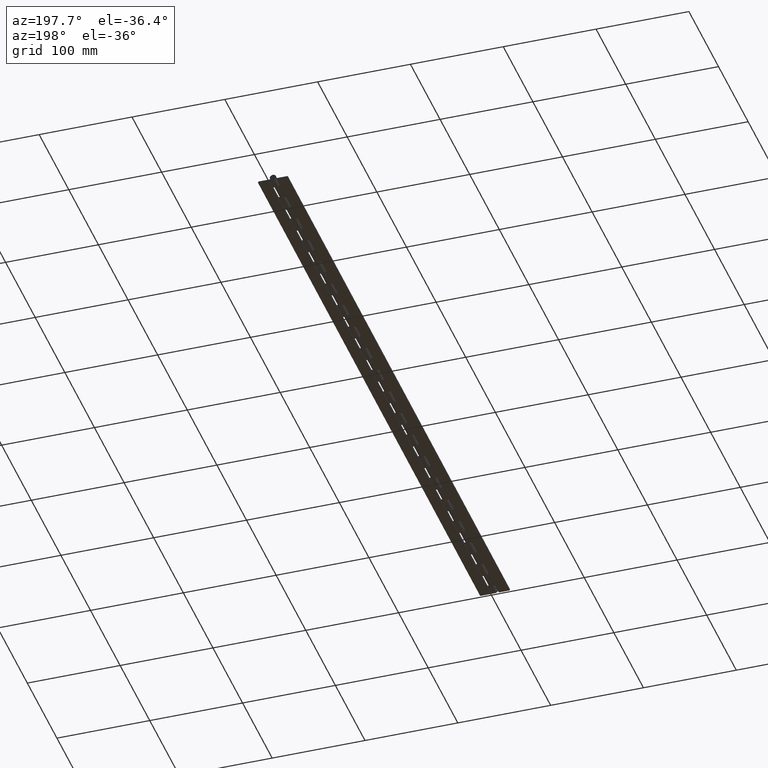
[diagram: clean part render]
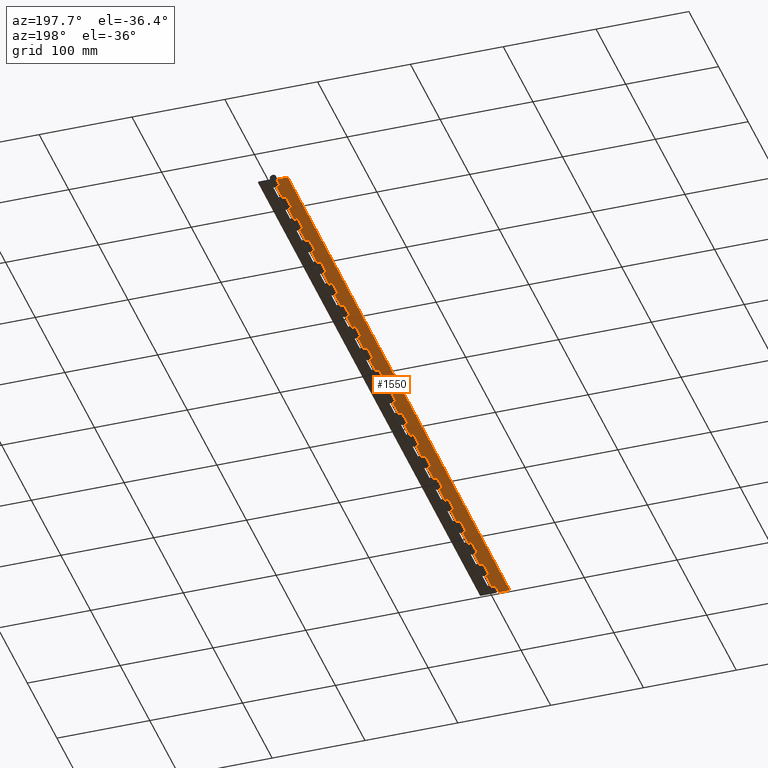
[diagram: same view with one face highlighted and labeled with its STEP entity id]
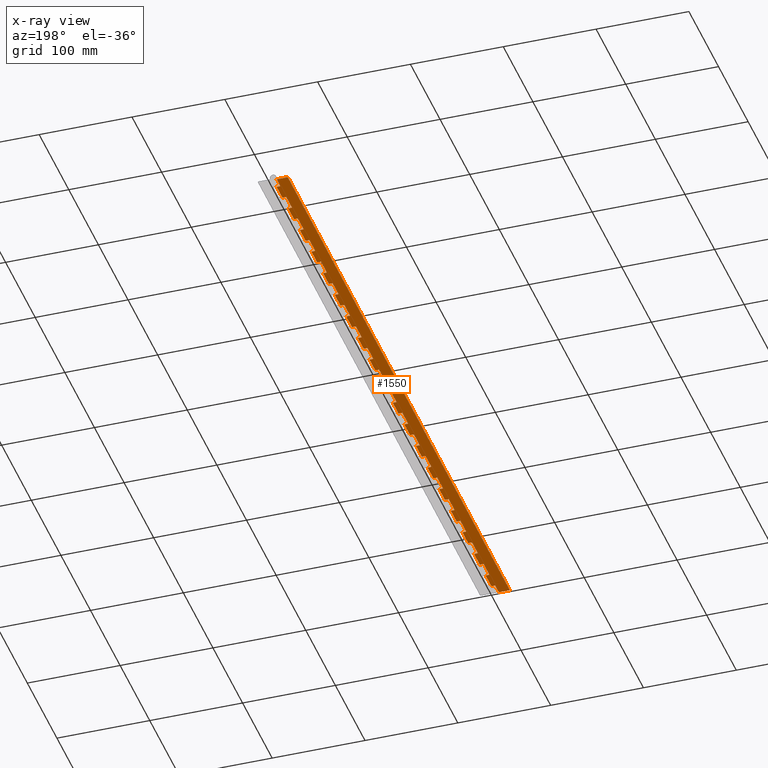
[diagram: x-ray of the same camera — body ghosted, the highlighted face saturated]
A machine part, auxiliary view. The second image highlights one B-rep face of the part: STEP entity #1550.
The next image is the same camera in x-ray: the body ghosted, the highlighted face saturated — about 0% of this face is hidden behind the body in this view.
In plain terms, the highlighted planar face has unit normal (0, 0, 1).
Its self-contained STEP definition (entity closure, byte-faithful):
#1 = CARTESIAN_POINT ( 'NONE',  ( -15.99999982459446300, 78.40000000000002000, -3.350000000000000500 ) ) ;
#40 = EDGE_CURVE ( 'NONE', #3232, #2082, #7272, .T. ) ;
#50 = ORIENTED_EDGE ( 'NONE', *, *, #6202, .T. ) ;
#52 = CARTESIAN_POINT ( 'NONE',  ( 0.0000000000000000000, 509.6000000000000800, -3.350000000000000500 ) ) ;
#53 = CARTESIAN_POINT ( 'NONE',  ( -3.999999824594461900, 666.4000000000000900, -3.350000000000000500 ) ) ;
#54 = LINE ( 'NONE', #3114, #4959 ) ;
#77 = ORIENTED_EDGE ( 'NONE', *, *, #7607, .T. ) ;
#111 = VERTEX_POINT ( 'NONE', #2161 ) ;
#118 = LINE ( 'NONE', #7765, #2697 ) ;
#134 = VECTOR ( 'NONE', #6717, 1000.000000000000000 ) ;
#139 = VECTOR ( 'NONE', #2868, 1000.000000000000000 ) ;
#141 = CARTESIAN_POINT ( 'NONE',  ( 0.0000000000000000000, 156.8000000000000100, -3.350000000000000500 ) ) ;
#144 = VERTEX_POINT ( 'NONE', #5946 ) ;
#152 = DIRECTION ( 'NONE',  ( -0.0000000000000000000, -1.000000000000000000, -0.0000000000000000000 ) ) ;
#166 = CARTESIAN_POINT ( 'NONE',  ( 0.0000000000000000000, 725.2000000000000500, -3.350000000000000500 ) ) ;
#194 = VERTEX_POINT ( 'NONE', #6678 ) ;
#209 = VERTEX_POINT ( 'NONE', #7238 ) ;
#249 = EDGE_CURVE ( 'NONE', #3271, #6583, #534, .T. ) ;
#254 = DIRECTION ( 'NONE',  ( -1.000000000000000000, -0.0000000000000000000, 0.0000000000000000000 ) ) ;
#265 = DIRECTION ( 'NONE',  ( 1.327594496921025700E-016, -1.000000000000000000, 0.0000000000000000000 ) ) ;
#275 = DIRECTION ( 'NONE',  ( 1.000000000000000000, 0.0000000000000000000, 0.0000000000000000000 ) ) ;
#281 = CARTESIAN_POINT ( 'NONE',  ( -15.99999982459446300, 156.8000000000000400, -3.350000000000000500 ) ) ;
#289 = AXIS2_PLACEMENT_3D ( 'NONE', #3565, #3220, #6434 ) ;
#297 = EDGE_CURVE ( 'NONE', #3287, #111, #3518, .T. ) ;
#323 = VECTOR ( 'NONE', #4070, 1000.000000000000000 ) ;
#337 = CARTESIAN_POINT ( 'NONE',  ( -3.999999824594461900, 666.4000000000000900, -3.350000000000000500 ) ) ;
#351 = EDGE_CURVE ( 'NONE', #1193, #765, #3112, .T. ) ;
#354 = LINE ( 'NONE', #977, #5247 ) ;
#362 = EDGE_CURVE ( 'NONE', #3859, #3232, #6534, .T. ) ;
#369 = CARTESIAN_POINT ( 'NONE',  ( -3.999999824594459200, 333.2000000000000500, -3.350000000000000500 ) ) ;
#381 = VERTEX_POINT ( 'NONE', #7755 ) ;
#385 = CARTESIAN_POINT ( 'NONE',  ( -3.999999824594461900, 274.4000000000000300, -3.350000000000000500 ) ) ;
#396 = CARTESIAN_POINT ( 'NONE',  ( -3.999999824594459200, 372.4000000000000900, -3.350000000000000500 ) ) ;
#399 = ORIENTED_EDGE ( 'NONE', *, *, #7476, .T. ) ;
#414 = ORIENTED_EDGE ( 'NONE', *, *, #1083, .T. ) ;
#427 = VECTOR ( 'NONE', #6502, 1000.000000000000000 ) ;
#431 = EDGE_CURVE ( 'NONE', #5645, #2429, #813, .T. ) ;
#435 = EDGE_CURVE ( 'NONE', #3449, #194, #624, .T. ) ;
#442 = CARTESIAN_POINT ( 'NONE',  ( 0.0000000000000000000, 725.2000000000000500, -3.350000000000000500 ) ) ;
#482 = EDGE_CURVE ( 'NONE', #209, #1553, #5133, .T. ) ;
#501 = DIRECTION ( 'NONE',  ( 1.000000000000000000, 0.0000000000000000000, 0.0000000000000000000 ) ) ;
#514 = LINE ( 'NONE', #4620, #1801 ) ;
#534 = LINE ( 'NONE', #4718, #7166 ) ;
#539 = VECTOR ( 'NONE', #5368, 1000.000000000000000 ) ;
#552 = VERTEX_POINT ( 'NONE', #4017 ) ;
#569 = DIRECTION ( 'NONE',  ( 1.327594496921025700E-016, -1.000000000000000000, 0.0000000000000000000 ) ) ;
#572 = CARTESIAN_POINT ( 'NONE',  ( -3.999999824594461900, 313.6000000000000200, -3.350000000000000500 ) ) ;
#581 = CARTESIAN_POINT ( 'NONE',  ( -3.999999824594459200, 294.0000000000000600, -3.350000000000000500 ) ) ;
#620 = LINE ( 'NONE', #5864, #427 ) ;
#624 = LINE ( 'NONE', #6903, #7673 ) ;
#630 = LINE ( 'NONE', #5360, #7069 ) ;
#649 = DIRECTION ( 'NONE',  ( -0.0000000000000000000, -1.000000000000000000, -0.0000000000000000000 ) ) ;
#652 = VECTOR ( 'NONE', #3597, 1000.000000000000000 ) ;
#666 = CARTESIAN_POINT ( 'NONE',  ( -3.999999824594461900, 431.2000000000001000, -3.350000000000000500 ) ) ;
#678 = DIRECTION ( 'NONE',  ( -1.000000000000000000, -0.0000000000000000000, 0.0000000000000000000 ) ) ;
#681 = ORIENTED_EDGE ( 'NONE', *, *, #5373, .T. ) ;
#700 = VERTEX_POINT ( 'NONE', #2952 ) ;
#750 = VERTEX_POINT ( 'NONE', #4994 ) ;
#758 = VERTEX_POINT ( 'NONE', #6247 ) ;
#765 = VERTEX_POINT ( 'NONE', #1959 ) ;
#778 = ORIENTED_EDGE ( 'NONE', *, *, #3250, .T. ) ;
#781 = EDGE_CURVE ( 'NONE', #6583, #3859, #4409, .T. ) ;
#798 = EDGE_CURVE ( 'NONE', #7500, #144, #7666, .T. ) ;
#813 = LINE ( 'NONE', #5371, #2322 ) ;
#842 = CARTESIAN_POINT ( 'NONE',  ( 0.0000000000000000000, 725.2000000000000500, -3.350000000000000500 ) ) ;
#848 = EDGE_CURVE ( 'NONE', #1005, #983, #2108, .T. ) ;
#859 = VERTEX_POINT ( 'NONE', #1982 ) ;
#873 = DIRECTION ( 'NONE',  ( 1.327594496921025700E-016, -1.000000000000000000, 0.0000000000000000000 ) ) ;
#874 = EDGE_CURVE ( 'NONE', #2187, #4313, #5314, .T. ) ;
#889 = CARTESIAN_POINT ( 'NONE',  ( -3.999999824594459200, 607.6000000000000200, -3.350000000000000500 ) ) ;
#896 = VECTOR ( 'NONE', #7862, 1000.000000000000000 ) ;
#899 = DIRECTION ( 'NONE',  ( -1.000000000000000000, -0.0000000000000000000, 0.0000000000000000000 ) ) ;
#924 = LINE ( 'NONE', #8277, #5843 ) ;
#977 = CARTESIAN_POINT ( 'NONE',  ( 0.0000000000000000000, 725.2000000000000500, -3.350000000000000500 ) ) ;
#983 = VERTEX_POINT ( 'NONE', #1901 ) ;
#987 = VERTEX_POINT ( 'NONE', #1581 ) ;
#1005 = VERTEX_POINT ( 'NONE', #2065 ) ;
#1020 = CARTESIAN_POINT ( 'NONE',  ( -15.99999982459446300, -12.40000000000000000, -3.350000000000000500 ) ) ;
#1024 = CARTESIAN_POINT ( 'NONE',  ( 0.0000000000000000000, 725.2000000000000500, -3.350000000000000500 ) ) ;
#1031 = ORIENTED_EDGE ( 'NONE', *, *, #7208, .T. ) ;
#1034 = LINE ( 'NONE', #3499, #4234 ) ;
#1081 = VERTEX_POINT ( 'NONE', #3855 ) ;
#1083 = EDGE_CURVE ( 'NONE', #859, #1193, #2000, .T. ) ;
#1094 = LINE ( 'NONE', #7457, #6002 ) ;
#1098 = DIRECTION ( 'NONE',  ( 1.000000000000000000, 0.0000000000000000000, 0.0000000000000000000 ) ) ;
#1109 = EDGE_CURVE ( 'NONE', #6977, #6296, #514, .T. ) ;
#1121 = ORIENTED_EDGE ( 'NONE', *, *, #4886, .T. ) ;
#1137 = VECTOR ( 'NONE', #5971, 1000.000000000000000 ) ;
#1142 = VERTEX_POINT ( 'NONE', #5399 ) ;
#1144 = VECTOR ( 'NONE', #1950, 1000.000000000000000 ) ;
#1162 = CARTESIAN_POINT ( 'NONE',  ( -3.999999824594461900, 509.6000000000000800, -3.350000000000000500 ) ) ;
#1174 = VERTEX_POINT ( 'NONE', #6634 ) ;
#1179 = CARTESIAN_POINT ( 'NONE',  ( -3.999999824594459200, 254.8000000000000400, -3.350000000000000500 ) ) ;
#1193 = VERTEX_POINT ( 'NONE', #6580 ) ;
#1207 = VECTOR ( 'NONE', #4863, 1000.000000000000000 ) ;
#1208 = DIRECTION ( 'NONE',  ( 1.000000000000000000, 0.0000000000000000000, 0.0000000000000000000 ) ) ;
#1217 = EDGE_CURVE ( 'NONE', #5851, #4440, #118, .T. ) ;
#1218 = VECTOR ( 'NONE', #7664, 1000.000000000000000 ) ;
#1235 = EDGE_CURVE ( 'NONE', #700, #987, #5910, .T. ) ;
#1259 = CARTESIAN_POINT ( 'NONE',  ( 0.0000000000000000000, 725.2000000000000500, -3.350000000000000500 ) ) ;
#1291 = VERTEX_POINT ( 'NONE', #7637 ) ;
#1299 = CARTESIAN_POINT ( 'NONE',  ( -15.99999982459446300, 235.2000000000000700, -3.350000000000000500 ) ) ;
#1310 = LINE ( 'NONE', #3716, #7953 ) ;
#1337 = LINE ( 'NONE', #842, #1137 ) ;
#1362 = LINE ( 'NONE', #5907, #8010 ) ;
#1395 = ORIENTED_EDGE ( 'NONE', *, *, #1437, .T. ) ;
#1397 = LINE ( 'NONE', #4131, #8051 ) ;
#1399 = CARTESIAN_POINT ( 'NONE',  ( -3.999999824594463700, 0.0000000000000000000, -3.350000000000000500 ) ) ;
#1411 = ORIENTED_EDGE ( 'NONE', *, *, #6276, .F. ) ;
#1412 = VECTOR ( 'NONE', #6555, 1000.000000000000000 ) ;
#1418 = VECTOR ( 'NONE', #6471, 1000.000000000000000 ) ;
#1425 = DIRECTION ( 'NONE',  ( 1.327594496921025700E-016, -1.000000000000000000, 0.0000000000000000000 ) ) ;
#1437 = EDGE_CURVE ( 'NONE', #5803, #1005, #6422, .T. ) ;
#1448 = CARTESIAN_POINT ( 'NONE',  ( 0.0000000000000000000, 78.40000000000000600, -3.350000000000000500 ) ) ;
#1455 = LINE ( 'NONE', #6113, #6377 ) ;
#1473 = ORIENTED_EDGE ( 'NONE', *, *, #3485, .T. ) ;
#1476 = CARTESIAN_POINT ( 'NONE',  ( -3.999999824594461900, 470.4000000000000900, -3.350000000000000500 ) ) ;
#1490 = LINE ( 'NONE', #166, #8148 ) ;
#1511 = VECTOR ( 'NONE', #7229, 1000.000000000000000 ) ;
#1531 = EDGE_CURVE ( 'NONE', #4313, #6455, #3489, .T. ) ;
#1537 = EDGE_CURVE ( 'NONE', #7129, #2187, #6934, .T. ) ;
#1550 = ADVANCED_FACE ( 'NONE', ( #6723 ), #7107, .F. ) ;
#1553 = VERTEX_POINT ( 'NONE', #4898 ) ;
#1578 = EDGE_CURVE ( 'NONE', #6616, #3165, #1397, .T. ) ;
#1581 = CARTESIAN_POINT ( 'NONE',  ( -3.999999824594463700, 0.0000000000000000000, -3.350000000000000500 ) ) ;
#1586 = EDGE_CURVE ( 'NONE', #4276, #5645, #4816, .T. ) ;
#1593 = ORIENTED_EDGE ( 'NONE', *, *, #6640, .T. ) ;
#1640 = EDGE_CURVE ( 'NONE', #552, #209, #6120, .T. ) ;
#1727 = VECTOR ( 'NONE', #7168, 1000.000000000000000 ) ;
#1729 = CARTESIAN_POINT ( 'NONE',  ( -3.999999824594459200, 19.60000000000000100, -3.350000000000000500 ) ) ;
#1750 = LINE ( 'NONE', #2378, #3853 ) ;
#1769 = ORIENTED_EDGE ( 'NONE', *, *, #7270, .T. ) ;
#1780 = EDGE_CURVE ( 'NONE', #4322, #7129, #1490, .T. ) ;
#1790 = VECTOR ( 'NONE', #3561, 1000.000000000000000 ) ;
#1801 = VECTOR ( 'NONE', #4589, 1000.000000000000000 ) ;
#1808 = VECTOR ( 'NONE', #899, 1000.000000000000000 ) ;
#1814 = CARTESIAN_POINT ( 'NONE',  ( 0.0000000000000000000, 666.4000000000000900, -3.350000000000000500 ) ) ;
#1823 = LINE ( 'NONE', #5449, #3306 ) ;
#1841 = EDGE_CURVE ( 'NONE', #6188, #3271, #1094, .T. ) ;
#1849 = CARTESIAN_POINT ( 'NONE',  ( 0.0000000000000000000, 725.2000000000000500, -3.350000000000000500 ) ) ;
#1850 = DIRECTION ( 'NONE',  ( 1.327594496921025700E-016, -1.000000000000000000, 0.0000000000000000000 ) ) ;
#1855 = CARTESIAN_POINT ( 'NONE',  ( -3.999999824594459200, 568.3999999999999800, -3.350000000000000500 ) ) ;
#1866 = ORIENTED_EDGE ( 'NONE', *, *, #8225, .T. ) ;
#1877 = VERTEX_POINT ( 'NONE', #6190 ) ;
#1885 = EDGE_CURVE ( 'NONE', #758, #3287, #7743, .T. ) ;
#1895 = CARTESIAN_POINT ( 'NONE',  ( -3.999999824594459200, 294.0000000000000600, -3.350000000000000500 ) ) ;
#1901 = CARTESIAN_POINT ( 'NONE',  ( -3.999999824594461900, 274.4000000000000300, -3.350000000000000500 ) ) ;
#1913 = VECTOR ( 'NONE', #4369, 1000.000000000000000 ) ;
#1937 = CARTESIAN_POINT ( 'NONE',  ( -3.999999824594461000, -12.40000000000000000, -3.350000000000000500 ) ) ;
#1942 = LINE ( 'NONE', #7227, #3430 ) ;
#1949 = ORIENTED_EDGE ( 'NONE', *, *, #1537, .T. ) ;
#1950 = DIRECTION ( 'NONE',  ( -1.000000000000000000, -0.0000000000000000000, 0.0000000000000000000 ) ) ;
#1959 = CARTESIAN_POINT ( 'NONE',  ( 0.0000000000000000000, 607.6000000000000200, -3.350000000000000500 ) ) ;
#1980 = ORIENTED_EDGE ( 'NONE', *, *, #1531, .T. ) ;
#1982 = CARTESIAN_POINT ( 'NONE',  ( -3.999999824594461900, 627.2000000000000500, -3.350000000000000500 ) ) ;
#1999 = LINE ( 'NONE', #5805, #6938 ) ;
#2000 = LINE ( 'NONE', #3992, #323 ) ;
#2036 = CARTESIAN_POINT ( 'NONE',  ( 0.0000000000000000000, 725.2000000000000500, -3.350000000000000500 ) ) ;
#2065 = CARTESIAN_POINT ( 'NONE',  ( 0.0000000000000000000, 274.4000000000000300, -3.350000000000000500 ) ) ;
#2082 = VERTEX_POINT ( 'NONE', #1729 ) ;
#2108 = LINE ( 'NONE', #4565, #3605 ) ;
#2114 = LINE ( 'NONE', #6298, #1913 ) ;
#2128 = ORIENTED_EDGE ( 'NONE', *, *, #4119, .T. ) ;
#2132 = EDGE_CURVE ( 'NONE', #8281, #1081, #8209, .T. ) ;
#2133 = ORIENTED_EDGE ( 'NONE', *, *, #1109, .T. ) ;
#2134 = ORIENTED_EDGE ( 'NONE', *, *, #297, .T. ) ;
#2146 = CARTESIAN_POINT ( 'NONE',  ( -15.99999982459446300, -12.40000000000000000, -3.350000000000000500 ) ) ;
#2157 = CARTESIAN_POINT ( 'NONE',  ( -3.999999824594459200, 98.00000000000001400, -3.350000000000000500 ) ) ;
#2161 = CARTESIAN_POINT ( 'NONE',  ( 0.0000000000000000000, 333.2000000000000500, -3.350000000000000500 ) ) ;
#2187 = VERTEX_POINT ( 'NONE', #1476 ) ;
#2210 = VECTOR ( 'NONE', #7936, 1000.000000000000000 ) ;
#2230 = LINE ( 'NONE', #2146, #539 ) ;
#2232 = CARTESIAN_POINT ( 'NONE',  ( 0.0000000000000000000, 725.2000000000000500, -3.350000000000000500 ) ) ;
#2258 = LINE ( 'NONE', #1179, #5463 ) ;
#2262 = DIRECTION ( 'NONE',  ( 1.327594496921025700E-016, -1.000000000000000000, 0.0000000000000000000 ) ) ;
#2265 = ORIENTED_EDGE ( 'NONE', *, *, #40, .T. ) ;
#2266 = DIRECTION ( 'NONE',  ( 2.098455817713880300E-016, -1.000000000000000000, 0.0000000000000000000 ) ) ;
#2289 = EDGE_CURVE ( 'NONE', #6381, #4322, #5073, .T. ) ;
#2294 = ORIENTED_EDGE ( 'NONE', *, *, #4834, .T. ) ;
#2295 = CARTESIAN_POINT ( 'NONE',  ( -3.999999824594459200, 725.2000000000000500, -3.350000000000000500 ) ) ;
#2297 = ORIENTED_EDGE ( 'NONE', *, *, #362, .T. ) ;
#2311 = VECTOR ( 'NONE', #1098, 1000.000000000000000 ) ;
#2322 = VECTOR ( 'NONE', #7084, 1000.000000000000000 ) ;
#2324 = LINE ( 'NONE', #7558, #4016 ) ;
#2331 = LINE ( 'NONE', #1895, #4236 ) ;
#2364 = CARTESIAN_POINT ( 'NONE',  ( -3.999999824594461900, 352.8000000000000700, -3.350000000000000500 ) ) ;
#2369 = VERTEX_POINT ( 'NONE', #4185 ) ;
#2378 = CARTESIAN_POINT ( 'NONE',  ( -15.99999982459446300, 509.6000000000000800, -3.350000000000000500 ) ) ;
#2383 = ORIENTED_EDGE ( 'NONE', *, *, #7802, .T. ) ;
#2403 = EDGE_CURVE ( 'NONE', #2082, #3362, #4042, .T. ) ;
#2411 = CARTESIAN_POINT ( 'NONE',  ( 0.0000000000000000000, 97.99999999999997200, -3.350000000000000500 ) ) ;
#2427 = LINE ( 'NONE', #2157, #7380 ) ;
#2429 = VERTEX_POINT ( 'NONE', #7486 ) ;
#2437 = CARTESIAN_POINT ( 'NONE',  ( -3.999999824594459200, 98.00000000000001400, -3.350000000000000500 ) ) ;
#2468 = CARTESIAN_POINT ( 'NONE',  ( -15.99999982459446300, 352.8000000000000700, -3.350000000000000500 ) ) ;
#2491 = DIRECTION ( 'NONE',  ( -0.0000000000000000000, -1.000000000000000000, -0.0000000000000000000 ) ) ;
#2495 = VERTEX_POINT ( 'NONE', #6902 ) ;
#2502 = CARTESIAN_POINT ( 'NONE',  ( 0.0000000000000000000, 39.20000000000000300, -3.350000000000000500 ) ) ;
#2560 = CARTESIAN_POINT ( 'NONE',  ( 0.0000000000000000000, 725.2000000000000500, -3.350000000000000500 ) ) ;
#2582 = CARTESIAN_POINT ( 'NONE',  ( -3.999999824594459200, 176.4000000000000300, -3.350000000000000500 ) ) ;
#2609 = ORIENTED_EDGE ( 'NONE', *, *, #6055, .T. ) ;
#2623 = VECTOR ( 'NONE', #6982, 1000.000000000000000 ) ;
#2647 = CARTESIAN_POINT ( 'NONE',  ( -3.999999824594459200, 529.2000000000000500, -3.350000000000000500 ) ) ;
#2656 = VERTEX_POINT ( 'NONE', #2582 ) ;
#2677 = DIRECTION ( 'NONE',  ( 1.000000000000000000, 0.0000000000000000000, 0.0000000000000000000 ) ) ;
#2687 = CARTESIAN_POINT ( 'NONE',  ( -3.999999824594461900, 548.8000000000000700, -3.350000000000000500 ) ) ;
#2693 = ORIENTED_EDGE ( 'NONE', *, *, #4687, .T. ) ;
#2697 = VECTOR ( 'NONE', #7874, 1000.000000000000000 ) ;
#2701 = LINE ( 'NONE', #385, #1207 ) ;
#2724 = ORIENTED_EDGE ( 'NONE', *, *, #431, .T. ) ;
#2772 = VERTEX_POINT ( 'NONE', #1448 ) ;
#2774 = ORIENTED_EDGE ( 'NONE', *, *, #2945, .T. ) ;
#2815 = VECTOR ( 'NONE', #3071, 1000.000000000000000 ) ;
#2827 = LINE ( 'NONE', #1, #1144 ) ;
#2852 = CARTESIAN_POINT ( 'NONE',  ( -3.999999824594459200, 529.2000000000000500, -3.350000000000000500 ) ) ;
#2868 = DIRECTION ( 'NONE',  ( -0.0000000000000000000, -1.000000000000000000, -0.0000000000000000000 ) ) ;
#2883 = DIRECTION ( 'NONE',  ( -1.000000000000000000, -0.0000000000000000000, 0.0000000000000000000 ) ) ;
#2885 = ORIENTED_EDGE ( 'NONE', *, *, #1640, .T. ) ;
#2907 = LINE ( 'NONE', #1855, #1218 ) ;
#2923 = DIRECTION ( 'NONE',  ( -1.000000000000000000, -0.0000000000000000000, 0.0000000000000000000 ) ) ;
#2925 = CARTESIAN_POINT ( 'NONE',  ( 0.0000000000000000000, 215.6000000000000200, -3.350000000000000500 ) ) ;
#2932 = EDGE_CURVE ( 'NONE', #4440, #859, #5346, .T. ) ;
#2945 = EDGE_CURVE ( 'NONE', #7116, #7783, #54, .T. ) ;
#2952 = CARTESIAN_POINT ( 'NONE',  ( 0.0000000000000000000, 0.0000000000000000000, -3.350000000000000500 ) ) ;
#2962 = CARTESIAN_POINT ( 'NONE',  ( 0.0000000000000000000, 19.59999999999995200, -3.350000000000000500 ) ) ;
#2964 = CARTESIAN_POINT ( 'NONE',  ( -3.999999824594459200, 137.2000000000000200, -3.350000000000000500 ) ) ;
#2982 = EDGE_CURVE ( 'NONE', #1877, #1142, #3025, .T. ) ;
#3001 = EDGE_CURVE ( 'NONE', #2772, #6188, #2827, .T. ) ;
#3025 = LINE ( 'NONE', #2560, #7993 ) ;
#3037 = LINE ( 'NONE', #8136, #6470 ) ;
#3071 = DIRECTION ( 'NONE',  ( 1.327594496921025700E-016, -1.000000000000000000, 0.0000000000000000000 ) ) ;
#3085 = DIRECTION ( 'NONE',  ( -1.000000000000000000, -0.0000000000000000000, 0.0000000000000000000 ) ) ;
#3086 = VECTOR ( 'NONE', #5816, 1000.000000000000000 ) ;
#3100 = CARTESIAN_POINT ( 'NONE',  ( 0.0000000000000000000, 117.6000000000000100, -3.350000000000000500 ) ) ;
#3112 = LINE ( 'NONE', #889, #1418 ) ;
#3114 = CARTESIAN_POINT ( 'NONE',  ( -3.999999824594459200, 372.4000000000000900, -3.350000000000000500 ) ) ;
#3121 = ORIENTED_EDGE ( 'NONE', *, *, #482, .T. ) ;
#3142 = CARTESIAN_POINT ( 'NONE',  ( -15.99999982459446300, 627.2000000000000500, -3.350000000000000500 ) ) ;
#3165 = VERTEX_POINT ( 'NONE', #5977 ) ;
#3199 = ORIENTED_EDGE ( 'NONE', *, *, #3388, .T. ) ;
#3212 = VECTOR ( 'NONE', #4148, 1000.000000000000000 ) ;
#3220 = DIRECTION ( 'NONE',  ( 0.0000000000000000000, 0.0000000000000000000, 1.000000000000000000 ) ) ;
#3222 = LINE ( 'NONE', #2647, #1727 ) ;
#3232 = VERTEX_POINT ( 'NONE', #4124 ) ;
#3248 = ORIENTED_EDGE ( 'NONE', *, *, #4371, .T. ) ;
#3250 = EDGE_CURVE ( 'NONE', #8137, #5851, #1034, .T. ) ;
#3271 = VERTEX_POINT ( 'NONE', #5472 ) ;
#3287 = VERTEX_POINT ( 'NONE', #369 ) ;
#3306 = VECTOR ( 'NONE', #4815, 1000.000000000000000 ) ;
#3314 = DIRECTION ( 'NONE',  ( -1.000000000000000000, -0.0000000000000000000, 0.0000000000000000000 ) ) ;
#3317 = LINE ( 'NONE', #8215, #4647 ) ;
#3319 = ORIENTED_EDGE ( 'NONE', *, *, #2403, .T. ) ;
#3328 = CARTESIAN_POINT ( 'NONE',  ( -3.999999824594459200, 450.8000000000000700, -3.350000000000000500 ) ) ;
#3342 = CARTESIAN_POINT ( 'NONE',  ( 0.0000000000000000000, 725.2000000000000500, -3.350000000000000500 ) ) ;
#3362 = VERTEX_POINT ( 'NONE', #2962 ) ;
#3374 = VERTEX_POINT ( 'NONE', #7505 ) ;
#3388 = EDGE_CURVE ( 'NONE', #1081, #3782, #3628, .T. ) ;
#3405 = CARTESIAN_POINT ( 'NONE',  ( -15.99999982459446300, 705.6000000000001400, -3.350000000000000500 ) ) ;
#3410 = LINE ( 'NONE', #337, #3212 ) ;
#3428 = VECTOR ( 'NONE', #7022, 1000.000000000000000 ) ;
#3430 = VECTOR ( 'NONE', #4656, 1000.000000000000000 ) ;
#3438 = CARTESIAN_POINT ( 'NONE',  ( -15.99999982459446300, 588.0000000000001100, -3.350000000000000500 ) ) ;
#3444 = CARTESIAN_POINT ( 'NONE',  ( -15.99999982459446300, 313.6000000000000200, -3.350000000000000500 ) ) ;
#3449 = VERTEX_POINT ( 'NONE', #7585 ) ;
#3451 = EDGE_CURVE ( 'NONE', #6648, #6381, #4534, .T. ) ;
#3485 = EDGE_CURVE ( 'NONE', #381, #758, #7778, .T. ) ;
#3489 = LINE ( 'NONE', #3328, #1790 ) ;
#3499 = CARTESIAN_POINT ( 'NONE',  ( -3.999999824594459200, 646.8000000000000700, -3.350000000000000500 ) ) ;
#3503 = LINE ( 'NONE', #3438, #1808 ) ;
#3516 = EDGE_CURVE ( 'NONE', #1174, #8281, #924, .T. ) ;
#3518 = LINE ( 'NONE', #4036, #134 ) ;
#3522 = LINE ( 'NONE', #2232, #139 ) ;
#3536 = VERTEX_POINT ( 'NONE', #6659 ) ;
#3561 = DIRECTION ( 'NONE',  ( 1.000000000000000000, 0.0000000000000000000, 0.0000000000000000000 ) ) ;
#3565 = CARTESIAN_POINT ( 'NONE',  ( -15.99999982459446300, 725.2000000000000500, -3.350000000000000500 ) ) ;
#3579 = CARTESIAN_POINT ( 'NONE',  ( -3.999999824594459200, 686.0000000000000000, -3.350000000000000500 ) ) ;
#3584 = CARTESIAN_POINT ( 'NONE',  ( -3.999999824594461900, 392.0000000000000600, -3.350000000000000500 ) ) ;
#3597 = DIRECTION ( 'NONE',  ( 1.000000000000000000, 0.0000000000000000000, 0.0000000000000000000 ) ) ;
#3601 = VERTEX_POINT ( 'NONE', #6073 ) ;
#3605 = VECTOR ( 'NONE', #2923, 1000.000000000000000 ) ;
#3614 = VECTOR ( 'NONE', #4902, 1000.000000000000000 ) ;
#3624 = EDGE_CURVE ( 'NONE', #2656, #7887, #1823, .T. ) ;
#3628 = LINE ( 'NONE', #7529, #6644 ) ;
#3667 = CARTESIAN_POINT ( 'NONE',  ( -3.999999824594459200, 411.6000000000000800, -3.350000000000000500 ) ) ;
#3668 = DIRECTION ( 'NONE',  ( -0.0000000000000000000, -1.000000000000000000, -0.0000000000000000000 ) ) ;
#3670 = VERTEX_POINT ( 'NONE', #8092 ) ;
#3679 = EDGE_CURVE ( 'NONE', #5060, #5350, #4635, .T. ) ;
#3688 = ORIENTED_EDGE ( 'NONE', *, *, #7025, .T. ) ;
#3692 = VECTOR ( 'NONE', #5571, 1000.000000000000000 ) ;
#3716 = CARTESIAN_POINT ( 'NONE',  ( 0.0000000000000000000, 725.2000000000000500, -3.350000000000000500 ) ) ;
#3741 = ORIENTED_EDGE ( 'NONE', *, *, #8013, .T. ) ;
#3744 = VECTOR ( 'NONE', #7011, 1000.000000000000000 ) ;
#3761 = EDGE_CURVE ( 'NONE', #3536, #4787, #2324, .T. ) ;
#3782 = VERTEX_POINT ( 'NONE', #6924 ) ;
#3799 = LINE ( 'NONE', #4944, #2311 ) ;
#3818 = LINE ( 'NONE', #4723, #4224 ) ;
#3823 = CARTESIAN_POINT ( 'NONE',  ( -3.999999824594459200, 490.0000000000000600, -3.350000000000000500 ) ) ;
#3838 = EDGE_CURVE ( 'NONE', #1291, #1174, #4939, .T. ) ;
#3853 = VECTOR ( 'NONE', #6892, 1000.000000000000000 ) ;
#3855 = CARTESIAN_POINT ( 'NONE',  ( 0.0000000000000000000, 196.0000000000000300, -3.350000000000000500 ) ) ;
#3859 = VERTEX_POINT ( 'NONE', #2502 ) ;
#3872 = ORIENTED_EDGE ( 'NONE', *, *, #8020, .T. ) ;
#3882 = CARTESIAN_POINT ( 'NONE',  ( 0.0000000000000000000, 588.0000000000001100, -3.350000000000000500 ) ) ;
#3884 = VECTOR ( 'NONE', #4751, 1000.000000000000000 ) ;
#3902 = LINE ( 'NONE', #3405, #2210 ) ;
#3927 = ORIENTED_EDGE ( 'NONE', *, *, #3679, .T. ) ;
#3949 = DIRECTION ( 'NONE',  ( -0.0000000000000000000, -1.000000000000000000, -0.0000000000000000000 ) ) ;
#3978 = CARTESIAN_POINT ( 'NONE',  ( 0.0000000000000000000, 313.6000000000000200, -3.350000000000000500 ) ) ;
#3992 = CARTESIAN_POINT ( 'NONE',  ( -3.999999824594461900, 627.2000000000000500, -3.350000000000000500 ) ) ;
#4016 = VECTOR ( 'NONE', #3668, 1000.000000000000000 ) ;
#4017 = CARTESIAN_POINT ( 'NONE',  ( 0.0000000000000000000, 431.2000000000001000, -3.350000000000000500 ) ) ;
#4027 = VECTOR ( 'NONE', #649, 1000.000000000000000 ) ;
#4036 = CARTESIAN_POINT ( 'NONE',  ( -3.999999824594459200, 333.2000000000000500, -3.350000000000000500 ) ) ;
#4040 = EDGE_CURVE ( 'NONE', #3601, #7544, #5336, .T. ) ;
#4042 = LINE ( 'NONE', #6171, #652 ) ;
#4044 = LINE ( 'NONE', #6529, #7293 ) ;
#4052 = CARTESIAN_POINT ( 'NONE',  ( -1.734723475976807100E-015, 725.2000000000000500, -3.350000000000000500 ) ) ;
#4070 = DIRECTION ( 'NONE',  ( 1.327594496921025700E-016, -1.000000000000000000, 0.0000000000000000000 ) ) ;
#4119 = EDGE_CURVE ( 'NONE', #7887, #4276, #1337, .T. ) ;
#4121 = VECTOR ( 'NONE', #7982, 1000.000000000000000 ) ;
#4124 = CARTESIAN_POINT ( 'NONE',  ( -3.999999824594461900, 39.20000000000000300, -3.350000000000000500 ) ) ;
#4131 = CARTESIAN_POINT ( 'NONE',  ( 2.051283388571816900E-016, 737.6000000000000200, -3.350000000000000500 ) ) ;
#4132 = CARTESIAN_POINT ( 'NONE',  ( -3.999999824594461900, 509.6000000000000800, -3.350000000000000500 ) ) ;
#4133 = ORIENTED_EDGE ( 'NONE', *, *, #5821, .T. ) ;
#4148 = DIRECTION ( 'NONE',  ( 1.327594496921025700E-016, -1.000000000000000000, 0.0000000000000000000 ) ) ;
#4174 = ORIENTED_EDGE ( 'NONE', *, *, #7794, .T. ) ;
#4185 = CARTESIAN_POINT ( 'NONE',  ( -3.999999824594461900, 117.6000000000000100, -3.350000000000000500 ) ) ;
#4189 = EDGE_CURVE ( 'NONE', #5294, #4585, #2427, .T. ) ;
#4198 = VERTEX_POINT ( 'NONE', #6673 ) ;
#4210 = VECTOR ( 'NONE', #5234, 1000.000000000000000 ) ;
#4224 = VECTOR ( 'NONE', #254, 1000.000000000000000 ) ;
#4234 = VECTOR ( 'NONE', #6719, 1000.000000000000000 ) ;
#4236 = VECTOR ( 'NONE', #6391, 1000.000000000000000 ) ;
#4266 = ORIENTED_EDGE ( 'NONE', *, *, #2289, .T. ) ;
#4276 = VERTEX_POINT ( 'NONE', #141 ) ;
#4313 = VERTEX_POINT ( 'NONE', #7269 ) ;
#4322 = VERTEX_POINT ( 'NONE', #5328 ) ;
#4334 = ORIENTED_EDGE ( 'NONE', *, *, #3001, .T. ) ;
#4349 = VECTOR ( 'NONE', #152, 1000.000000000000000 ) ;
#4359 = EDGE_CURVE ( 'NONE', #194, #3601, #3818, .T. ) ;
#4369 = DIRECTION ( 'NONE',  ( -1.000000000000000000, -0.0000000000000000000, 0.0000000000000000000 ) ) ;
#4371 = EDGE_CURVE ( 'NONE', #3782, #2656, #630, .T. ) ;
#4391 = CARTESIAN_POINT ( 'NONE',  ( 0.0000000000000000000, 372.4000000000000900, -3.350000000000000500 ) ) ;
#4402 = DIRECTION ( 'NONE',  ( 1.327594496921025700E-016, -1.000000000000000000, 0.0000000000000000000 ) ) ;
#4409 = LINE ( 'NONE', #1259, #1412 ) ;
#4413 = LINE ( 'NONE', #2964, #7866 ) ;
#4434 = VECTOR ( 'NONE', #569, 1000.000000000000000 ) ;
#4436 = EDGE_CURVE ( 'NONE', #4763, #8137, #3410, .T. ) ;
#4440 = VERTEX_POINT ( 'NONE', #6749 ) ;
#4469 = CARTESIAN_POINT ( 'NONE',  ( 0.0000000000000000000, 725.2000000000000500, -3.350000000000000500 ) ) ;
#4472 = VERTEX_POINT ( 'NONE', #1020 ) ;
#4482 = ORIENTED_EDGE ( 'NONE', *, *, #4359, .T. ) ;
#4493 = DIRECTION ( 'NONE',  ( -0.0000000000000000000, -1.000000000000000000, -0.0000000000000000000 ) ) ;
#4511 = CARTESIAN_POINT ( 'NONE',  ( 0.0000000000000000000, 392.0000000000000600, -3.350000000000000500 ) ) ;
#4526 = CARTESIAN_POINT ( 'NONE',  ( -15.99999982459446300, 39.20000000000001000, -3.350000000000000500 ) ) ;
#4534 = LINE ( 'NONE', #1162, #2815 ) ;
#4565 = CARTESIAN_POINT ( 'NONE',  ( -15.99999982459446300, 274.4000000000000300, -3.350000000000000500 ) ) ;
#4585 = VERTEX_POINT ( 'NONE', #2411 ) ;
#4589 = DIRECTION ( 'NONE',  ( -0.0000000000000000000, -1.000000000000000000, -0.0000000000000000000 ) ) ;
#4620 = CARTESIAN_POINT ( 'NONE',  ( 0.0000000000000000000, 725.2000000000000500, -3.350000000000000500 ) ) ;
#4623 = CARTESIAN_POINT ( 'NONE',  ( -3.999999824594461900, 705.6000000000001400, -3.350000000000000500 ) ) ;
#4635 = LINE ( 'NONE', #1024, #4846 ) ;
#4647 = VECTOR ( 'NONE', #8239, 1000.000000000000000 ) ;
#4656 = DIRECTION ( 'NONE',  ( -1.000000000000000000, -0.0000000000000000000, 0.0000000000000000000 ) ) ;
#4662 = VECTOR ( 'NONE', #678, 1000.000000000000000 ) ;
#4687 = EDGE_CURVE ( 'NONE', #2495, #3449, #2907, .T. ) ;
#4698 = ORIENTED_EDGE ( 'NONE', *, *, #7907, .T. ) ;
#4717 = LINE ( 'NONE', #1849, #5127 ) ;
#4718 = CARTESIAN_POINT ( 'NONE',  ( -3.999999824594459200, 58.80000000000000400, -3.350000000000000500 ) ) ;
#4723 = CARTESIAN_POINT ( 'NONE',  ( -15.99999982459446300, 548.8000000000000700, -3.350000000000000500 ) ) ;
#4732 = CARTESIAN_POINT ( 'NONE',  ( 0.0000000000000000000, 58.79999999999996200, -3.350000000000000500 ) ) ;
#4751 = DIRECTION ( 'NONE',  ( 1.327594496921025700E-016, -1.000000000000000000, 0.0000000000000000000 ) ) ;
#4763 = VERTEX_POINT ( 'NONE', #53 ) ;
#4779 = VECTOR ( 'NONE', #1425, 1000.000000000000000 ) ;
#4787 = VERTEX_POINT ( 'NONE', #4511 ) ;
#4812 = ORIENTED_EDGE ( 'NONE', *, *, #6380, .T. ) ;
#4815 = DIRECTION ( 'NONE',  ( 1.000000000000000000, 0.0000000000000000000, 0.0000000000000000000 ) ) ;
#4816 = LINE ( 'NONE', #281, #3086 ) ;
#4834 = EDGE_CURVE ( 'NONE', #5205, #7116, #620, .T. ) ;
#4846 = VECTOR ( 'NONE', #4870, 1000.000000000000000 ) ;
#4862 = ORIENTED_EDGE ( 'NONE', *, *, #874, .T. ) ;
#4863 = DIRECTION ( 'NONE',  ( 1.327594496921025700E-016, -1.000000000000000000, 0.0000000000000000000 ) ) ;
#4867 = VECTOR ( 'NONE', #6693, 1000.000000000000000 ) ;
#4870 = DIRECTION ( 'NONE',  ( -0.0000000000000000000, -1.000000000000000000, -0.0000000000000000000 ) ) ;
#4886 = EDGE_CURVE ( 'NONE', #3362, #700, #5131, .T. ) ;
#4898 = CARTESIAN_POINT ( 'NONE',  ( -3.999999824594459200, 411.6000000000000800, -3.350000000000000500 ) ) ;
#4902 = DIRECTION ( 'NONE',  ( 1.327594496921025700E-016, -1.000000000000000000, 0.0000000000000000000 ) ) ;
#4939 = LINE ( 'NONE', #8280, #6850 ) ;
#4944 = CARTESIAN_POINT ( 'NONE',  ( -3.999999824594459200, 686.0000000000000000, -3.350000000000000500 ) ) ;
#4953 = DIRECTION ( 'NONE',  ( -1.000000000000000000, -0.0000000000000000000, 0.0000000000000000000 ) ) ;
#4959 = VECTOR ( 'NONE', #8313, 1000.000000000000000 ) ;
#4985 = ORIENTED_EDGE ( 'NONE', *, *, #5339, .T. ) ;
#4994 = CARTESIAN_POINT ( 'NONE',  ( -3.999999824594461900, 705.6000000000001400, -3.350000000000000500 ) ) ;
#4996 = VERTEX_POINT ( 'NONE', #3978 ) ;
#5025 = CARTESIAN_POINT ( 'NONE',  ( -3.999999824594461900, 588.0000000000001100, -3.350000000000000500 ) ) ;
#5038 = VERTEX_POINT ( 'NONE', #5947 ) ;
#5060 = VERTEX_POINT ( 'NONE', #7298 ) ;
#5073 = LINE ( 'NONE', #6049, #4867 ) ;
#5127 = VECTOR ( 'NONE', #2491, 1000.000000000000000 ) ;
#5131 = LINE ( 'NONE', #3342, #1511 ) ;
#5133 = LINE ( 'NONE', #666, #3614 ) ;
#5189 = ORIENTED_EDGE ( 'NONE', *, *, #4436, .T. ) ;
#5205 = VERTEX_POINT ( 'NONE', #3584 ) ;
#5234 = DIRECTION ( 'NONE',  ( -0.0000000000000000000, -1.000000000000000000, -0.0000000000000000000 ) ) ;
#5247 = VECTOR ( 'NONE', #6701, 1000.000000000000000 ) ;
#5254 = LINE ( 'NONE', #572, #6984 ) ;
#5258 = EDGE_CURVE ( 'NONE', #5450, #6648, #1750, .T. ) ;
#5294 = VERTEX_POINT ( 'NONE', #2437 ) ;
#5314 = LINE ( 'NONE', #6665, #6841 ) ;
#5315 = ORIENTED_EDGE ( 'NONE', *, *, #5579, .T. ) ;
#5328 = CARTESIAN_POINT ( 'NONE',  ( 0.0000000000000000000, 490.0000000000000600, -3.350000000000000500 ) ) ;
#5336 = LINE ( 'NONE', #2687, #6862 ) ;
#5339 = EDGE_CURVE ( 'NONE', #3670, #1877, #2258, .T. ) ;
#5346 = LINE ( 'NONE', #3142, #3428 ) ;
#5350 = VERTEX_POINT ( 'NONE', #3100 ) ;
#5360 = CARTESIAN_POINT ( 'NONE',  ( -3.999999824594461900, 196.0000000000000300, -3.350000000000000500 ) ) ;
#5368 = DIRECTION ( 'NONE',  ( 1.000000000000000000, 0.0000000000000000000, 0.0000000000000000000 ) ) ;
#5371 = CARTESIAN_POINT ( 'NONE',  ( -3.999999824594461900, 156.8000000000000100, -3.350000000000000500 ) ) ;
#5373 = EDGE_CURVE ( 'NONE', #2369, #5294, #7196, .T. ) ;
#5374 = CARTESIAN_POINT ( 'NONE',  ( -3.999999824594459200, 646.8000000000000700, -3.350000000000000500 ) ) ;
#5399 = CARTESIAN_POINT ( 'NONE',  ( 0.0000000000000000000, 235.2000000000000500, -3.350000000000000500 ) ) ;
#5446 = VERTEX_POINT ( 'NONE', #1937 ) ;
#5449 = CARTESIAN_POINT ( 'NONE',  ( -3.999999824594459200, 176.4000000000000300, -3.350000000000000500 ) ) ;
#5450 = VERTEX_POINT ( 'NONE', #52 ) ;
#5453 = EDGE_CURVE ( 'NONE', #1142, #1291, #6372, .T. ) ;
#5463 = VECTOR ( 'NONE', #1208, 1000.000000000000000 ) ;
#5472 = CARTESIAN_POINT ( 'NONE',  ( -3.999999824594459200, 58.80000000000000400, -3.350000000000000500 ) ) ;
#5491 = CARTESIAN_POINT ( 'NONE',  ( -3.999999824594461900, 156.8000000000000100, -3.350000000000000500 ) ) ;
#5548 = LINE ( 'NONE', #4469, #4027 ) ;
#5571 = DIRECTION ( 'NONE',  ( -1.000000000000000000, -0.0000000000000000000, 0.0000000000000000000 ) ) ;
#5579 = EDGE_CURVE ( 'NONE', #4787, #5205, #4044, .T. ) ;
#5594 = ORIENTED_EDGE ( 'NONE', *, *, #3451, .T. ) ;
#5645 = VERTEX_POINT ( 'NONE', #5491 ) ;
#5691 = ORIENTED_EDGE ( 'NONE', *, *, #5699, .T. ) ;
#5699 = EDGE_CURVE ( 'NONE', #4585, #2772, #3037, .T. ) ;
#5702 = DIRECTION ( 'NONE',  ( -0.0000000000000000000, -1.000000000000000000, -0.0000000000000000000 ) ) ;
#5730 = ORIENTED_EDGE ( 'NONE', *, *, #3761, .T. ) ;
#5735 = VECTOR ( 'NONE', #501, 1000.000000000000000 ) ;
#5736 = CARTESIAN_POINT ( 'NONE',  ( 0.0000000000000000000, 686.0000000000000000, -3.350000000000000500 ) ) ;
#5780 = CARTESIAN_POINT ( 'NONE',  ( 0.0000000000000000000, 176.4000000000000100, -3.350000000000000500 ) ) ;
#5803 = VERTEX_POINT ( 'NONE', #6316 ) ;
#5804 = ORIENTED_EDGE ( 'NONE', *, *, #1586, .T. ) ;
#5805 = CARTESIAN_POINT ( 'NONE',  ( -3.999999824594461900, 744.8000000000001800, -3.350000000000000500 ) ) ;
#5816 = DIRECTION ( 'NONE',  ( -1.000000000000000000, -0.0000000000000000000, 0.0000000000000000000 ) ) ;
#5821 = EDGE_CURVE ( 'NONE', #4198, #7330, #5254, .T. ) ;
#5843 = VECTOR ( 'NONE', #8250, 1000.000000000000000 ) ;
#5851 = VERTEX_POINT ( 'NONE', #6371 ) ;
#5864 = CARTESIAN_POINT ( 'NONE',  ( -3.999999824594461900, 392.0000000000000600, -3.350000000000000500 ) ) ;
#5881 = CARTESIAN_POINT ( 'NONE',  ( 0.0000000000000000000, 725.2000000000000500, -3.350000000000000500 ) ) ;
#5886 = ORIENTED_EDGE ( 'NONE', *, *, #351, .T. ) ;
#5888 = DIRECTION ( 'NONE',  ( 1.327594496921025700E-016, -1.000000000000000000, 0.0000000000000000000 ) ) ;
#5907 = CARTESIAN_POINT ( 'NONE',  ( -3.999999824594459200, 725.2000000000000500, -3.350000000000000500 ) ) ;
#5910 = LINE ( 'NONE', #1399, #7460 ) ;
#5945 = VERTEX_POINT ( 'NONE', #3882 ) ;
#5946 = CARTESIAN_POINT ( 'NONE',  ( 0.0000000000000000000, 705.6000000000001400, -3.350000000000000500 ) ) ;
#5947 = CARTESIAN_POINT ( 'NONE',  ( -3.999999824594461900, 588.0000000000001100, -3.350000000000000500 ) ) ;
#5971 = DIRECTION ( 'NONE',  ( -0.0000000000000000000, -1.000000000000000000, -0.0000000000000000000 ) ) ;
#5977 = CARTESIAN_POINT ( 'NONE',  ( -15.99999982459446300, 737.6000000000000200, -3.350000000000000500 ) ) ;
#5981 = ORIENTED_EDGE ( 'NONE', *, *, #1885, .T. ) ;
#6002 = VECTOR ( 'NONE', #2262, 1000.000000000000000 ) ;
#6049 = CARTESIAN_POINT ( 'NONE',  ( -3.999999824594459200, 490.0000000000000600, -3.350000000000000500 ) ) ;
#6055 = EDGE_CURVE ( 'NONE', #6296, #4763, #1942, .T. ) ;
#6073 = CARTESIAN_POINT ( 'NONE',  ( -3.999999824594461900, 548.8000000000000700, -3.350000000000000500 ) ) ;
#6113 = CARTESIAN_POINT ( 'NONE',  ( -3.999999824594463700, 0.0000000000000000000, -3.350000000000000500 ) ) ;
#6120 = LINE ( 'NONE', #6614, #7652 ) ;
#6158 = LINE ( 'NONE', #5025, #4434 ) ;
#6161 = CARTESIAN_POINT ( 'NONE',  ( 0.0000000000000000000, 470.4000000000000900, -3.350000000000000500 ) ) ;
#6171 = CARTESIAN_POINT ( 'NONE',  ( -3.999999824594459200, 19.60000000000000100, -3.350000000000000500 ) ) ;
#6188 = VERTEX_POINT ( 'NONE', #6734 ) ;
#6190 = CARTESIAN_POINT ( 'NONE',  ( 0.0000000000000000000, 254.8000000000000400, -3.350000000000000500 ) ) ;
#6199 = ORIENTED_EDGE ( 'NONE', *, *, #5258, .T. ) ;
#6201 = DIRECTION ( 'NONE',  ( -0.0000000000000000000, -1.000000000000000000, -0.0000000000000000000 ) ) ;
#6202 = EDGE_CURVE ( 'NONE', #111, #4996, #354, .T. ) ;
#6205 = ORIENTED_EDGE ( 'NONE', *, *, #3516, .T. ) ;
#6212 = ORIENTED_EDGE ( 'NONE', *, *, #2132, .T. ) ;
#6247 = CARTESIAN_POINT ( 'NONE',  ( -3.999999824594461900, 352.8000000000000700, -3.350000000000000500 ) ) ;
#6253 = ORIENTED_EDGE ( 'NONE', *, *, #2982, .T. ) ;
#6269 = DIRECTION ( 'NONE',  ( 1.327594496921025700E-016, -1.000000000000000000, 0.0000000000000000000 ) ) ;
#6276 = EDGE_CURVE ( 'NONE', #3165, #4472, #3317, .T. ) ;
#6296 = VERTEX_POINT ( 'NONE', #1814 ) ;
#6298 = CARTESIAN_POINT ( 'NONE',  ( -15.99999982459446300, 117.6000000000000400, -3.350000000000000500 ) ) ;
#6307 = EDGE_CURVE ( 'NONE', #5038, #2495, #6158, .T. ) ;
#6309 = ORIENTED_EDGE ( 'NONE', *, *, #435, .T. ) ;
#6316 = CARTESIAN_POINT ( 'NONE',  ( 0.0000000000000000000, 294.0000000000000600, -3.350000000000000500 ) ) ;
#6344 = CARTESIAN_POINT ( 'NONE',  ( -3.999999824594461900, 117.6000000000000100, -3.350000000000000500 ) ) ;
#6368 = EDGE_CURVE ( 'NONE', #7330, #5803, #2331, .T. ) ;
#6371 = CARTESIAN_POINT ( 'NONE',  ( 0.0000000000000000000, 646.8000000000000700, -3.350000000000000500 ) ) ;
#6372 = LINE ( 'NONE', #1299, #4662 ) ;
#6377 = VECTOR ( 'NONE', #2266, 1000.000000000000000 ) ;
#6380 = EDGE_CURVE ( 'NONE', #3374, #5450, #5548, .T. ) ;
#6381 = VERTEX_POINT ( 'NONE', #3823 ) ;
#6391 = DIRECTION ( 'NONE',  ( 1.000000000000000000, 0.0000000000000000000, 0.0000000000000000000 ) ) ;
#6422 = LINE ( 'NONE', #442, #896 ) ;
#6429 = EDGE_LOOP ( 'NONE', ( #6486, #4698, #3872, #6611, #399, #3741, #6697, #2133, #2609, #5189, #778, #8043, #7217, #414, #5886, #4174, #7432, #7017, #2693, #6309, #4482, #7665, #7548, #4812, #6199, #5594, #4266, #7312, #1949, #4862, #1980, #1593, #2885, #3121, #1031, #5730, #5315, #2294, #2774, #2383, #1473, #5981, #2134, #50, #3688, #4133, #7106, #1395, #7042, #77, #4985, #6253, #7323, #7723, #6205, #6212, #3199, #3248, #6827, #2128, #5804, #2724, #7146, #3927, #1769, #681, #8188, #5691, #4334, #8262, #6716, #7534, #2297, #2265, #3319, #1121, #6463, #1866, #7439, #1411 ) ) ;
#6434 = DIRECTION ( 'NONE',  ( 1.000000000000000000, 0.0000000000000000000, -0.0000000000000000000 ) ) ;
#6443 = EDGE_CURVE ( 'NONE', #7544, #3374, #3222, .T. ) ;
#6453 = DIRECTION ( 'NONE',  ( 1.327594496921025700E-016, -1.000000000000000000, 0.0000000000000000000 ) ) ;
#6455 = VERTEX_POINT ( 'NONE', #6495 ) ;
#6463 = ORIENTED_EDGE ( 'NONE', *, *, #1235, .T. ) ;
#6470 = VECTOR ( 'NONE', #6201, 1000.000000000000000 ) ;
#6471 = DIRECTION ( 'NONE',  ( 1.000000000000000000, 0.0000000000000000000, 0.0000000000000000000 ) ) ;
#6474 = LINE ( 'NONE', #4623, #4779 ) ;
#6486 = ORIENTED_EDGE ( 'NONE', *, *, #1578, .F. ) ;
#6491 = CARTESIAN_POINT ( 'NONE',  ( -3.999999824594461900, 39.20000000000000300, -3.350000000000000500 ) ) ;
#6495 = CARTESIAN_POINT ( 'NONE',  ( 0.0000000000000000000, 450.8000000000000700, -3.350000000000000500 ) ) ;
#6502 = DIRECTION ( 'NONE',  ( 1.327594496921025700E-016, -1.000000000000000000, 0.0000000000000000000 ) ) ;
#6529 = CARTESIAN_POINT ( 'NONE',  ( -15.99999982459446300, 392.0000000000000600, -3.350000000000000500 ) ) ;
#6534 = LINE ( 'NONE', #4526, #8076 ) ;
#6555 = DIRECTION ( 'NONE',  ( -0.0000000000000000000, -1.000000000000000000, -0.0000000000000000000 ) ) ;
#6580 = CARTESIAN_POINT ( 'NONE',  ( -3.999999824594459200, 607.6000000000000200, -3.350000000000000500 ) ) ;
#6582 = EDGE_CURVE ( 'NONE', #4472, #5446, #2230, .T. ) ;
#6583 = VERTEX_POINT ( 'NONE', #4732 ) ;
#6611 = ORIENTED_EDGE ( 'NONE', *, *, #798, .T. ) ;
#6614 = CARTESIAN_POINT ( 'NONE',  ( -15.99999982459446300, 431.2000000000001000, -3.350000000000000500 ) ) ;
#6616 = VERTEX_POINT ( 'NONE', #6691 ) ;
#6634 = CARTESIAN_POINT ( 'NONE',  ( -3.999999824594459200, 215.6000000000000500, -3.350000000000000500 ) ) ;
#6640 = EDGE_CURVE ( 'NONE', #6455, #552, #3522, .T. ) ;
#6644 = VECTOR ( 'NONE', #4953, 1000.000000000000000 ) ;
#6648 = VERTEX_POINT ( 'NONE', #4132 ) ;
#6659 = CARTESIAN_POINT ( 'NONE',  ( 0.0000000000000000000, 411.6000000000000800, -3.350000000000000500 ) ) ;
#6665 = CARTESIAN_POINT ( 'NONE',  ( -3.999999824594461900, 470.4000000000000900, -3.350000000000000500 ) ) ;
#6673 = CARTESIAN_POINT ( 'NONE',  ( -3.999999824594461900, 313.6000000000000200, -3.350000000000000500 ) ) ;
#6678 = CARTESIAN_POINT ( 'NONE',  ( 0.0000000000000000000, 548.8000000000000700, -3.350000000000000500 ) ) ;
#6691 = CARTESIAN_POINT ( 'NONE',  ( -3.999999824594461900, 737.6000000000000200, -3.350000000000000500 ) ) ;
#6693 = DIRECTION ( 'NONE',  ( 1.000000000000000000, 0.0000000000000000000, 0.0000000000000000000 ) ) ;
#6697 = ORIENTED_EDGE ( 'NONE', *, *, #7698, .T. ) ;
#6701 = DIRECTION ( 'NONE',  ( -0.0000000000000000000, -1.000000000000000000, -0.0000000000000000000 ) ) ;
#6716 = ORIENTED_EDGE ( 'NONE', *, *, #249, .T. ) ;
#6717 = DIRECTION ( 'NONE',  ( 1.000000000000000000, 0.0000000000000000000, 0.0000000000000000000 ) ) ;
#6719 = DIRECTION ( 'NONE',  ( 1.000000000000000000, 0.0000000000000000000, 0.0000000000000000000 ) ) ;
#6723 = FACE_OUTER_BOUND ( 'NONE', #6429, .T. ) ;
#6734 = CARTESIAN_POINT ( 'NONE',  ( -3.999999824594461900, 78.40000000000000600, -3.350000000000000500 ) ) ;
#6749 = CARTESIAN_POINT ( 'NONE',  ( 0.0000000000000000000, 627.2000000000000500, -3.350000000000000500 ) ) ;
#6827 = ORIENTED_EDGE ( 'NONE', *, *, #3624, .T. ) ;
#6841 = VECTOR ( 'NONE', #265, 1000.000000000000000 ) ;
#6845 = DIRECTION ( 'NONE',  ( -0.0000000000000000000, -1.000000000000000000, -0.0000000000000000000 ) ) ;
#6850 = VECTOR ( 'NONE', #4402, 1000.000000000000000 ) ;
#6862 = VECTOR ( 'NONE', #5888, 1000.000000000000000 ) ;
#6875 = CARTESIAN_POINT ( 'NONE',  ( -15.99999982459446300, 470.4000000000000900, -3.350000000000000500 ) ) ;
#6892 = DIRECTION ( 'NONE',  ( -1.000000000000000000, -0.0000000000000000000, 0.0000000000000000000 ) ) ;
#6902 = CARTESIAN_POINT ( 'NONE',  ( -3.999999824594459200, 568.3999999999999800, -3.350000000000000500 ) ) ;
#6903 = CARTESIAN_POINT ( 'NONE',  ( 0.0000000000000000000, 725.2000000000000500, -3.350000000000000500 ) ) ;
#6924 = CARTESIAN_POINT ( 'NONE',  ( -3.999999824594461900, 196.0000000000000300, -3.350000000000000500 ) ) ;
#6934 = LINE ( 'NONE', #6875, #3692 ) ;
#6938 = VECTOR ( 'NONE', #6453, 1000.000000000000000 ) ;
#6977 = VERTEX_POINT ( 'NONE', #5736 ) ;
#6982 = DIRECTION ( 'NONE',  ( -1.000000000000000000, -0.0000000000000000000, 0.0000000000000000000 ) ) ;
#6984 = VECTOR ( 'NONE', #1850, 1000.000000000000000 ) ;
#7011 = DIRECTION ( 'NONE',  ( 1.327594496921025700E-016, -1.000000000000000000, 0.0000000000000000000 ) ) ;
#7017 = ORIENTED_EDGE ( 'NONE', *, *, #6307, .T. ) ;
#7022 = DIRECTION ( 'NONE',  ( -1.000000000000000000, -0.0000000000000000000, 0.0000000000000000000 ) ) ;
#7025 = EDGE_CURVE ( 'NONE', #4996, #4198, #7372, .T. ) ;
#7042 = ORIENTED_EDGE ( 'NONE', *, *, #848, .T. ) ;
#7069 = VECTOR ( 'NONE', #873, 1000.000000000000000 ) ;
#7072 = VECTOR ( 'NONE', #6269, 1000.000000000000000 ) ;
#7084 = DIRECTION ( 'NONE',  ( 1.327594496921025700E-016, -1.000000000000000000, 0.0000000000000000000 ) ) ;
#7106 = ORIENTED_EDGE ( 'NONE', *, *, #6368, .T. ) ;
#7107 = PLANE ( 'NONE',  #289 ) ;
#7116 = VERTEX_POINT ( 'NONE', #396 ) ;
#7129 = VERTEX_POINT ( 'NONE', #6161 ) ;
#7146 = ORIENTED_EDGE ( 'NONE', *, *, #7161, .T. ) ;
#7161 = EDGE_CURVE ( 'NONE', #2429, #5060, #4413, .T. ) ;
#7166 = VECTOR ( 'NONE', #7387, 1000.000000000000000 ) ;
#7168 = DIRECTION ( 'NONE',  ( 1.000000000000000000, 0.0000000000000000000, 0.0000000000000000000 ) ) ;
#7196 = LINE ( 'NONE', #6344, #3744 ) ;
#7201 = DIRECTION ( 'NONE',  ( -1.000000000000000000, -0.0000000000000000000, -0.0000000000000000000 ) ) ;
#7208 = EDGE_CURVE ( 'NONE', #1553, #3536, #8267, .T. ) ;
#7217 = ORIENTED_EDGE ( 'NONE', *, *, #2932, .T. ) ;
#7227 = CARTESIAN_POINT ( 'NONE',  ( -15.99999982459446300, 666.4000000000000900, -3.350000000000000500 ) ) ;
#7229 = DIRECTION ( 'NONE',  ( -0.0000000000000000000, -1.000000000000000000, -0.0000000000000000000 ) ) ;
#7238 = CARTESIAN_POINT ( 'NONE',  ( -3.999999824594461900, 431.2000000000001000, -3.350000000000000500 ) ) ;
#7269 = CARTESIAN_POINT ( 'NONE',  ( -3.999999824594459200, 450.8000000000000700, -3.350000000000000500 ) ) ;
#7270 = EDGE_CURVE ( 'NONE', #5350, #2369, #2114, .T. ) ;
#7272 = LINE ( 'NONE', #6491, #7072 ) ;
#7293 = VECTOR ( 'NONE', #3314, 1000.000000000000000 ) ;
#7298 = CARTESIAN_POINT ( 'NONE',  ( 0.0000000000000000000, 137.1999999999999900, -3.350000000000000500 ) ) ;
#7312 = ORIENTED_EDGE ( 'NONE', *, *, #1780, .T. ) ;
#7323 = ORIENTED_EDGE ( 'NONE', *, *, #5453, .T. ) ;
#7330 = VERTEX_POINT ( 'NONE', #581 ) ;
#7372 = LINE ( 'NONE', #3444, #4121 ) ;
#7380 = VECTOR ( 'NONE', #275, 1000.000000000000000 ) ;
#7387 = DIRECTION ( 'NONE',  ( 1.000000000000000000, 0.0000000000000000000, 0.0000000000000000000 ) ) ;
#7388 = DIRECTION ( 'NONE',  ( -1.000000000000000000, 0.0000000000000000000, 0.0000000000000000000 ) ) ;
#7432 = ORIENTED_EDGE ( 'NONE', *, *, #7515, .T. ) ;
#7439 = ORIENTED_EDGE ( 'NONE', *, *, #6582, .F. ) ;
#7457 = CARTESIAN_POINT ( 'NONE',  ( -3.999999824594461900, 78.40000000000000600, -3.350000000000000500 ) ) ;
#7460 = VECTOR ( 'NONE', #7201, 1000.000000000000000 ) ;
#7476 = EDGE_CURVE ( 'NONE', #144, #750, #3902, .T. ) ;
#7486 = CARTESIAN_POINT ( 'NONE',  ( -3.999999824594459200, 137.2000000000000200, -3.350000000000000500 ) ) ;
#7500 = VERTEX_POINT ( 'NONE', #4052 ) ;
#7505 = CARTESIAN_POINT ( 'NONE',  ( 0.0000000000000000000, 529.2000000000000500, -3.350000000000000500 ) ) ;
#7515 = EDGE_CURVE ( 'NONE', #5945, #5038, #3503, .T. ) ;
#7529 = CARTESIAN_POINT ( 'NONE',  ( -15.99999982459446300, 196.0000000000000600, -3.350000000000000500 ) ) ;
#7534 = ORIENTED_EDGE ( 'NONE', *, *, #781, .T. ) ;
#7544 = VERTEX_POINT ( 'NONE', #2852 ) ;
#7548 = ORIENTED_EDGE ( 'NONE', *, *, #6443, .T. ) ;
#7558 = CARTESIAN_POINT ( 'NONE',  ( 0.0000000000000000000, 725.2000000000000500, -3.350000000000000500 ) ) ;
#7585 = CARTESIAN_POINT ( 'NONE',  ( 0.0000000000000000000, 568.3999999999999800, -3.350000000000000500 ) ) ;
#7607 = EDGE_CURVE ( 'NONE', #983, #3670, #2701, .T. ) ;
#7637 = CARTESIAN_POINT ( 'NONE',  ( -3.999999824594461900, 235.2000000000000500, -3.350000000000000500 ) ) ;
#7652 = VECTOR ( 'NONE', #2883, 1000.000000000000000 ) ;
#7653 = VERTEX_POINT ( 'NONE', #3579 ) ;
#7664 = DIRECTION ( 'NONE',  ( 1.000000000000000000, 0.0000000000000000000, 0.0000000000000000000 ) ) ;
#7665 = ORIENTED_EDGE ( 'NONE', *, *, #4040, .T. ) ;
#7666 = LINE ( 'NONE', #5881, #4210 ) ;
#7673 = VECTOR ( 'NONE', #6845, 1000.000000000000000 ) ;
#7698 = EDGE_CURVE ( 'NONE', #7653, #6977, #3799, .T. ) ;
#7723 = ORIENTED_EDGE ( 'NONE', *, *, #3838, .T. ) ;
#7743 = LINE ( 'NONE', #2364, #3884 ) ;
#7755 = CARTESIAN_POINT ( 'NONE',  ( 0.0000000000000000000, 352.8000000000000700, -3.350000000000000500 ) ) ;
#7765 = CARTESIAN_POINT ( 'NONE',  ( 0.0000000000000000000, 725.2000000000000500, -3.350000000000000500 ) ) ;
#7778 = LINE ( 'NONE', #2468, #2623 ) ;
#7783 = VERTEX_POINT ( 'NONE', #4391 ) ;
#7794 = EDGE_CURVE ( 'NONE', #765, #5945, #1310, .T. ) ;
#7802 = EDGE_CURVE ( 'NONE', #7783, #381, #4717, .T. ) ;
#7862 = DIRECTION ( 'NONE',  ( -0.0000000000000000000, -1.000000000000000000, -0.0000000000000000000 ) ) ;
#7866 = VECTOR ( 'NONE', #8118, 1000.000000000000000 ) ;
#7874 = DIRECTION ( 'NONE',  ( -0.0000000000000000000, -1.000000000000000000, -0.0000000000000000000 ) ) ;
#7887 = VERTEX_POINT ( 'NONE', #5780 ) ;
#7907 = EDGE_CURVE ( 'NONE', #6616, #8256, #1999, .T. ) ;
#7936 = DIRECTION ( 'NONE',  ( -1.000000000000000000, -0.0000000000000000000, 0.0000000000000000000 ) ) ;
#7953 = VECTOR ( 'NONE', #5702, 1000.000000000000000 ) ;
#7982 = DIRECTION ( 'NONE',  ( -1.000000000000000000, -0.0000000000000000000, 0.0000000000000000000 ) ) ;
#7993 = VECTOR ( 'NONE', #4493, 1000.000000000000000 ) ;
#8010 = VECTOR ( 'NONE', #2677, 1000.000000000000000 ) ;
#8013 = EDGE_CURVE ( 'NONE', #750, #7653, #6474, .T. ) ;
#8020 = EDGE_CURVE ( 'NONE', #8256, #7500, #1362, .T. ) ;
#8043 = ORIENTED_EDGE ( 'NONE', *, *, #1217, .T. ) ;
#8051 = VECTOR ( 'NONE', #7388, 1000.000000000000000 ) ;
#8076 = VECTOR ( 'NONE', #3085, 1000.000000000000000 ) ;
#8092 = CARTESIAN_POINT ( 'NONE',  ( -3.999999824594459200, 254.8000000000000400, -3.350000000000000500 ) ) ;
#8118 = DIRECTION ( 'NONE',  ( 1.000000000000000000, 0.0000000000000000000, 0.0000000000000000000 ) ) ;
#8136 = CARTESIAN_POINT ( 'NONE',  ( 0.0000000000000000000, 725.2000000000000500, -3.350000000000000500 ) ) ;
#8137 = VERTEX_POINT ( 'NONE', #5374 ) ;
#8148 = VECTOR ( 'NONE', #3949, 1000.000000000000000 ) ;
#8188 = ORIENTED_EDGE ( 'NONE', *, *, #4189, .T. ) ;
#8209 = LINE ( 'NONE', #2036, #4349 ) ;
#8215 = CARTESIAN_POINT ( 'NONE',  ( -15.99999982459446300, 725.2000000000000500, -3.350000000000000500 ) ) ;
#8225 = EDGE_CURVE ( 'NONE', #987, #5446, #1455, .T. ) ;
#8239 = DIRECTION ( 'NONE',  ( -0.0000000000000000000, -1.000000000000000000, -0.0000000000000000000 ) ) ;
#8250 = DIRECTION ( 'NONE',  ( 1.000000000000000000, 0.0000000000000000000, 0.0000000000000000000 ) ) ;
#8256 = VERTEX_POINT ( 'NONE', #2295 ) ;
#8262 = ORIENTED_EDGE ( 'NONE', *, *, #1841, .T. ) ;
#8267 = LINE ( 'NONE', #3667, #5735 ) ;
#8277 = CARTESIAN_POINT ( 'NONE',  ( -3.999999824594459200, 215.6000000000000500, -3.350000000000000500 ) ) ;
#8280 = CARTESIAN_POINT ( 'NONE',  ( -3.999999824594461900, 235.2000000000000500, -3.350000000000000500 ) ) ;
#8281 = VERTEX_POINT ( 'NONE', #2925 ) ;
#8313 = DIRECTION ( 'NONE',  ( 1.000000000000000000, 0.0000000000000000000, 0.0000000000000000000 ) ) ;